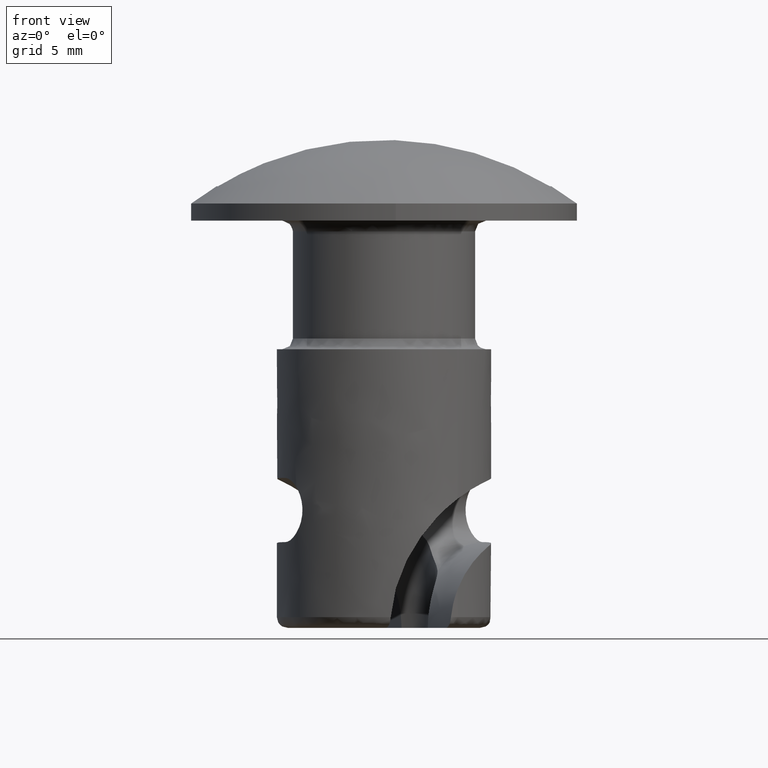
[diagram: clean part render]
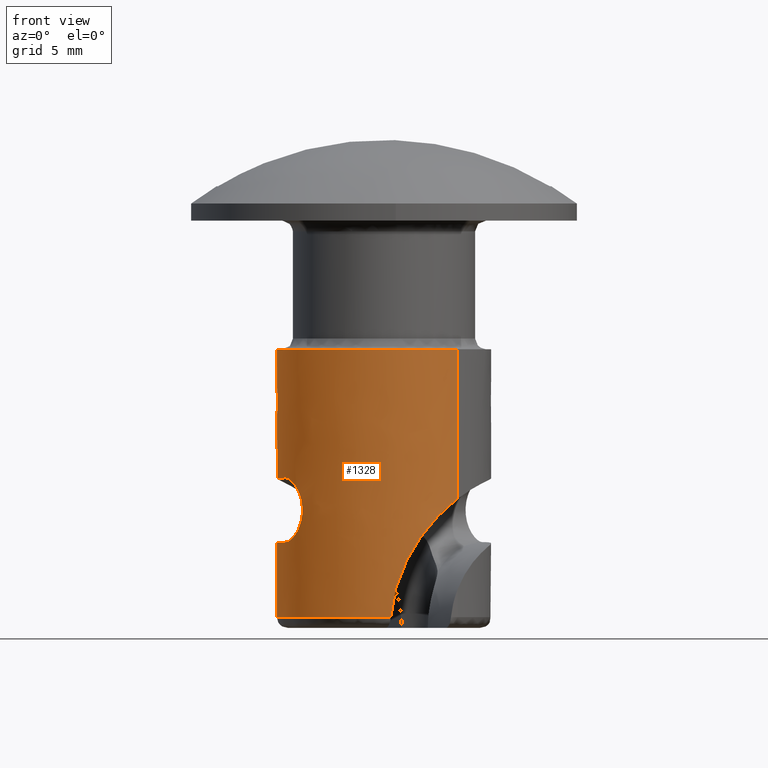
[diagram: same view with one face highlighted and labeled with its STEP entity id]
A machine part, front view. The second image highlights one B-rep face of the part: STEP entity #1328.
In plain terms, the highlighted face is a freeform B-spline surface patch.
Its self-contained STEP definition (entity closure, byte-faithful):
#1024=CARTESIAN_POINT('',(3.205212373083344,3.837527021850584,-18.812500000000000));
#1025=CARTESIAN_POINT('',(-0.212073591573738,6.691742039469135,-18.812500000000011));
#1026=CARTESIAN_POINT('',(-3.441772878468769,3.626871855061437,-18.812500000000000));
#1027=CARTESIAN_POINT('',(-7.068644733530205,0.185098976592668,-18.812500000000004));
#1028=CARTESIAN_POINT('',(-3.626871855061437,-3.441772878468769,-18.812500000000000));
#1029=CARTESIAN_POINT('',(-0.185098976592668,-7.068644733530205,-18.812500000000004));
#1030=CARTESIAN_POINT('',(3.441772878468769,-3.626871855061437,-18.812500000000000));
#1031=CARTESIAN_POINT('',(3.205212373083344,3.837527021850584,-5.679687500000000));
#1032=CARTESIAN_POINT('',(-0.212073591573738,6.691742039469135,-5.679687500000001));
#1033=CARTESIAN_POINT('',(-3.441772878468769,3.626871855061437,-5.679687500000000));
#1034=CARTESIAN_POINT('',(-7.068644733530205,0.185098976592668,-5.679687500000000));
#1035=CARTESIAN_POINT('',(-3.626871855061437,-3.441772878468769,-5.679687500000000));
#1036=CARTESIAN_POINT('',(-0.185098976592668,-7.068644733530205,-5.679687500000000));
#1037=CARTESIAN_POINT('',(3.441772878468769,-3.626871855061437,-5.679687500000000));
#1045=(BOUNDED_SURFACE()B_SPLINE_SURFACE(2,1,((#1024,#1031),(#1025,#1032),(#1026,#1033),(#1027,#1034),(#1028,#1035),(#1029,#1036),(#1030,#1037)),.UNSPECIFIED.,.F.,.F.,.U.)B_SPLINE_SURFACE_WITH_KNOTS((3,2,2,3),(2,2),(0.0,7.621529547664943,15.905800795126840,24.190072042588739),(0.0,13.132812500000011),.UNSPECIFIED.)GEOMETRIC_REPRESENTATION_ITEM()RATIONAL_B_SPLINE_SURFACE(((0.956886118190660,0.956886118190660),(0.730538238691624,0.730538238691624),(1.0,1.0),(0.707106781186548,0.707106781186548),(1.0,1.0),(0.707106781186548,0.707106781186548),(1.0,1.0)))REPRESENTATION_ITEM('')SURFACE());
#1046=CARTESIAN_POINT('',(3.205213124924041,3.837526393891474,-18.500000000000000));
#1047=VERTEX_POINT('',#1046);
#1048=CARTESIAN_POINT('',(-0.313195308170528,4.990181229067730,-18.500000000000000));
#1049=VERTEX_POINT('',#1048);
#1050=CARTESIAN_POINT('',(3.205213124924040,3.837526393891474,-18.500000000000004));
#1051=CARTESIAN_POINT('',(1.675712964474658,5.115009709393367,-18.500000000000000));
#1052=CARTESIAN_POINT('',(-0.313195308170527,4.990181229067735,-18.500000000000000));
#1060=(BOUNDED_CURVE()B_SPLINE_CURVE(2,(#1050,#1051,#1052),.UNSPECIFIED.,.F.,.U.)B_SPLINE_CURVE_WITH_KNOTS((3,3),(0.701706621458012,1.0),.UNSPECIFIED.)CURVE()GEOMETRIC_REPRESENTATION_ITEM()RATIONAL_B_SPLINE_CURVE((0.906937285704358,0.884655851128052,1.0))REPRESENTATION_ITEM(''));
#1061=EDGE_CURVE('',#1047,#1049,#1060,.T.);
#1062=ORIENTED_EDGE('',*,*,#1061,.T.);
#1063=CARTESIAN_POINT('',(-4.602524578819660,-1.953654908462775,-12.0));
#1064=VERTEX_POINT('',#1063);
#1065=CARTESIAN_POINT('',(-0.313195308170528,4.990181229067730,-18.500000000000000));
#1066=CARTESIAN_POINT('',(-0.333545851804895,4.988903981911282,-18.227404034916059));
#1067=CARTESIAN_POINT('',(-0.370451384091151,4.986533046700084,-17.959249060605970));
#1068=CARTESIAN_POINT('',(-0.474881855281474,4.977673480385340,-17.431225059849361));
#1069=CARTESIAN_POINT('',(-0.542409124009917,4.971179196966263,-17.171356847581681));
#1070=CARTESIAN_POINT('',(-0.706406020038393,4.950537425473404,-16.659581951972100));
#1071=CARTESIAN_POINT('',(-0.802873824092457,4.936397977225639,-16.407674507044259));
#1072=CARTESIAN_POINT('',(-0.940996612575546,4.910734653344343,-16.097729918009911));
#1073=CARTESIAN_POINT('',(-0.969551043867784,4.905187357017825,-16.035885008049739));
#1074=CARTESIAN_POINT('',(-1.028087493280969,4.893253349283264,-15.913361771660890));
#1075=CARTESIAN_POINT('',(-1.118051088080688,4.874092148370234,-15.731262537235420));
#1076=CARTESIAN_POINT('',(-1.214251395302763,4.850810000689118,-15.554138836756710));
#1077=CARTESIAN_POINT('',(-1.414408267091195,4.797760488926594,-15.206379579386390));
#1078=CARTESIAN_POINT('',(-1.558169819214901,4.753795887635031,-14.983168421206990));
#1079=CARTESIAN_POINT('',(-1.863907614147502,4.642447299941150,-14.553791083939510));
#1080=CARTESIAN_POINT('',(-2.025895583933864,4.575106692724223,-14.347622971084670));
#1081=CARTESIAN_POINT('',(-2.281063056653407,4.450361207056593,-14.051555063620009));
#1082=CARTESIAN_POINT('',(-2.367376569659461,4.405164397270802,-13.955982844506771));
#1083=CARTESIAN_POINT('',(-2.541146936122862,4.307263335180264,-13.771865472979149));
#1084=CARTESIAN_POINT('',(-2.628732671500905,4.254497812786169,-13.683171423565920));
#1085=CARTESIAN_POINT('',(-2.892723025411976,4.083638314925278,-13.427056668190859));
#1086=CARTESIAN_POINT('',(-3.070396017769359,3.953064536127255,-13.269582351309699));
#1087=CARTESIAN_POINT('',(-3.291380926773831,3.764331252449096,-13.089242760859021));
#1088=CARTESIAN_POINT('',(-3.335524028095409,3.725288414428775,-13.054003577542160));
#1089=CARTESIAN_POINT('',(-3.422664179133564,3.645389448269559,-12.985894069380750));
#1090=CARTESIAN_POINT('',(-3.552009706186949,3.522524370147845,-12.886989915287719));
#1091=CARTESIAN_POINT('',(-3.676897774425378,3.390498169590405,-12.797528488456930));
#1092=CARTESIAN_POINT('',(-3.919715576655280,3.113848121602381,-12.630378433644120));
#1093=CARTESIAN_POINT('',(-4.072369424853507,2.912669793240186,-12.534629349522540));
#1094=CARTESIAN_POINT('',(-4.247737079332166,2.638364945079645,-12.432128897164990));
#1095=CARTESIAN_POINT('',(-4.282124638523801,2.582196965308681,-12.412439115585441));
#1096=CARTESIAN_POINT('',(-4.348615455072798,2.468577770985542,-12.375064069439350));
#1097=CARTESIAN_POINT('',(-4.380752585837200,2.411089188979645,-12.357356393916991));
#1098=CARTESIAN_POINT('',(-4.473803432700945,2.236617988769802,-12.306958400578861));
#1099=CARTESIAN_POINT('',(-4.531360045320748,2.117632276851962,-12.276988912221560));
#1100=CARTESIAN_POINT('',(-4.637252253307963,1.874428408738168,-12.223280925048851));
#1101=CARTESIAN_POINT('',(-4.685588703104427,1.750210353618246,-12.199543618053600));
#1102=CARTESIAN_POINT('',(-4.772655318853499,1.496575752841046,-12.157395960413609));
#1103=CARTESIAN_POINT('',(-4.811415144130069,1.367047489399565,-12.138972828942750));
#1104=CARTESIAN_POINT('',(-4.912306264594552,0.971280223507315,-12.090556243802620));
#1105=CARTESIAN_POINT('',(-4.957497855358525,0.704510719052341,-12.068087001453550));
#1106=CARTESIAN_POINT('',(-4.992796520655979,0.300437993788355,-12.043235656493380));
#1107=CARTESIAN_POINT('',(-4.999123847875689,0.165089838578599,-12.036452067586101));
#1108=CARTESIAN_POINT('',(-5.000311054724803,-0.038895132051304,-12.027979446137730));
#1109=CARTESIAN_POINT('',(-4.999321247270415,-0.107050814775592,-12.025440123472841));
#1110=CARTESIAN_POINT('',(-4.994526163105690,-0.243682614082919,-12.020852335175160));
#1111=CARTESIAN_POINT('',(-4.990711570760094,-0.312171872780972,-12.018804783439700));
#1112=CARTESIAN_POINT('',(-4.964777035750552,-0.652258504024481,-12.009688347366311));
#1113=CARTESIAN_POINT('',(-4.922157790813722,-0.919353949308259,-12.005776204053770));
#1114=CARTESIAN_POINT('',(-4.794588090783870,-1.443874662666524,-12.000926861120540));
#1115=CARTESIAN_POINT('',(-4.709642351537382,-1.701301138292809,-11.999999999999970));
#1116=CARTESIAN_POINT('',(-4.602524578819679,-1.953654908462781,-12.0));
#1117=B_SPLINE_CURVE_WITH_KNOTS('',3,(#1065,#1066,#1067,#1068,#1069,#1070,#1071,#1072,#1073,#1074,#1075,#1076,#1077,#1078,#1079,#1080,#1081,#1082,#1083,#1084,#1085,#1086,#1087,#1088,#1089,#1090,#1091,#1092,#1093,#1094,#1095,#1096,#1097,#1098,#1099,#1100,#1101,#1102,#1103,#1104,#1105,#1106,#1107,#1108,#1109,#1110,#1111,#1112,#1113,#1114,#1115,#1116),.UNSPECIFIED.,.F.,.U.,(4,2,2,2,2,1,2,2,2,2,2,2,2,1,2,2,2,2,2,2,2,2,2,2,2,2,4),(0.0,0.062499999999999,0.124999999999999,0.187499999999998,0.203124999999998,0.218749999999998,0.249999999999998,0.312499999999998,0.374999999999997,0.406249999999997,0.437499999999997,0.499999999999997,0.515624999999997,0.531249999999997,0.562499999999997,0.624999999999998,0.640624999999998,0.656249999999999,0.687499999999999,0.718749999999999,0.749999999999999,0.812499999999999,0.843749999999999,0.859374999999999,0.874999999999999,0.937500000000000,1.0),.UNSPECIFIED.);
#1118=EDGE_CURVE('',#1049,#1064,#1117,.T.);
#1119=ORIENTED_EDGE('',*,*,#1118,.T.);
#1120=CARTESIAN_POINT('',(-4.602524578820329,-1.953654908461280,-15.0));
#1121=VERTEX_POINT('',#1120);
#1122=CARTESIAN_POINT('',(-4.602524578819660,-1.953654908462775,-12.0));
#1123=CARTESIAN_POINT('',(-4.583286532222242,-1.998976926148644,-11.999999999999600));
#1124=CARTESIAN_POINT('',(-4.563274655563524,-2.044255803955162,-12.002424994742920));
#1125=CARTESIAN_POINT('',(-4.521846569225862,-2.134329163576480,-12.012269923413941));
#1126=CARTESIAN_POINT('',(-4.500741525545569,-2.178452973019132,-12.019609078956680));
#1127=CARTESIAN_POINT('',(-4.436373648704045,-2.308227759730137,-12.048605119371841));
#1128=CARTESIAN_POINT('',(-4.392051281369685,-2.391298367197830,-12.077173352499090));
#1129=CARTESIAN_POINT('',(-4.324017515894582,-2.510971546438327,-12.134071833830941));
#1130=CARTESIAN_POINT('',(-4.301163931182855,-2.549880132075365,-12.155354799063311));
#1131=CARTESIAN_POINT('',(-4.256056699116483,-2.624477324109840,-12.201699691052310));
#1132=CARTESIAN_POINT('',(-4.211316017146745,-2.696268189654699,-12.252011352982890));
#1133=CARTESIAN_POINT('',(-4.167599939203552,-2.762714658213470,-12.310147404776210));
#1134=CARTESIAN_POINT('',(-4.124572976384840,-2.826549008673464,-12.372263431372611));
#1135=CARTESIAN_POINT('',(-4.103308352877657,-2.857291155668583,-12.405490144297771));
#1136=CARTESIAN_POINT('',(-4.042029548606867,-2.943977900124049,-12.509382067197370));
#1137=CARTESIAN_POINT('',(-4.004231603267068,-2.994873345709183,-12.584509900060111));
#1138=CARTESIAN_POINT('',(-3.953161702805849,-3.061584038341861,-12.706041815957470));
#1139=CARTESIAN_POINT('',(-3.937081752614206,-3.082202581260527,-12.748036722132991));
#1140=CARTESIAN_POINT('',(-3.907066437480246,-3.120163029684862,-12.835143000441660));
#1141=CARTESIAN_POINT('',(-3.893378860303747,-3.137193387719914,-12.879543103212081));
#1142=CARTESIAN_POINT('',(-3.856445384471974,-3.182664638921195,-13.015087199158859));
#1143=CARTESIAN_POINT('',(-3.837278353019772,-3.205574289447403,-13.108616680799150));
#1144=CARTESIAN_POINT('',(-3.817671569486337,-3.228852227722077,-13.253865452340490));
#1145=CARTESIAN_POINT('',(-3.812666791157220,-3.234748503088450,-13.303343915332009));
#1146=CARTESIAN_POINT('',(-3.806069059638136,-3.242508943995580,-13.401763191035750));
#1147=CARTESIAN_POINT('',(-3.802793230106266,-3.246344163889905,-13.500090310324961));
#1148=CARTESIAN_POINT('',(-3.806073135086069,-3.242504120765044,-13.598236533326849));
#1149=CARTESIAN_POINT('',(-3.812638279520693,-3.234782068754503,-13.696291615516630));
#1150=CARTESIAN_POINT('',(-3.817591363740609,-3.228947185350147,-13.745472610150189));
#1151=CARTESIAN_POINT('',(-3.837276998201714,-3.205576426202000,-13.891507983886770));
#1152=CARTESIAN_POINT('',(-3.856527665853866,-3.182565477519677,-13.985283578226699));
#1153=CARTESIAN_POINT('',(-3.893501301924083,-3.137041564271111,-14.120871618474281));
#1154=CARTESIAN_POINT('',(-3.907182975817483,-3.120016872454014,-14.165215513023220));
#1155=CARTESIAN_POINT('',(-3.937161496732803,-3.082100491476617,-14.252174254623640));
#1156=CARTESIAN_POINT('',(-3.953323122541688,-3.061376093025573,-14.294370421130560));
#1157=CARTESIAN_POINT('',(-4.004487075336396,-2.994533760061642,-14.416041364307640));
#1158=CARTESIAN_POINT('',(-4.042330353134812,-2.943565615185542,-14.491184628917161));
#1159=CARTESIAN_POINT('',(-4.103627075262500,-2.856833584734501,-14.595021533484580));
#1160=CARTESIAN_POINT('',(-4.124901405354690,-2.826069871977873,-14.628236157042540));
#1161=CARTESIAN_POINT('',(-4.167935147780713,-2.762209103071722,-14.690310673898530));
#1162=CARTESIAN_POINT('',(-4.189784654252073,-2.728989790958358,-14.719341698241450));
#1163=CARTESIAN_POINT('',(-4.256062892236824,-2.625385984949474,-14.800536159146690));
#1164=CARTESIAN_POINT('',(-4.301288601778196,-2.550958544738814,-14.846929859867100));
#1165=CARTESIAN_POINT('',(-4.392268042488657,-2.390910825542401,-14.922997411172091));
#1166=CARTESIAN_POINT('',(-4.436586017271869,-2.307808651805954,-14.951503057541650));
#1167=CARTESIAN_POINT('',(-4.500774740890321,-2.178381462752648,-14.980399608065420));
#1168=CARTESIAN_POINT('',(-4.521791275131985,-2.134439755168869,-14.987704217155621));
#1169=CARTESIAN_POINT('',(-4.562990200748773,-2.044883818747594,-14.997520022631180));
#1170=CARTESIAN_POINT('',(-4.583211102384047,-1.999154627789134,-14.999999999998980));
#1171=CARTESIAN_POINT('',(-4.602524578820329,-1.953654908461280,-15.0));
#1172=B_SPLINE_CURVE_WITH_KNOTS('',3,(#1122,#1123,#1124,#1125,#1126,#1127,#1128,#1129,#1130,#1131,#1132,#1133,#1134,#1135,#1136,#1137,#1138,#1139,#1140,#1141,#1142,#1143,#1144,#1145,#1146,#1147,#1148,#1149,#1150,#1151,#1152,#1153,#1154,#1155,#1156,#1157,#1158,#1159,#1160,#1161,#1162,#1163,#1164,#1165,#1166,#1167,#1168,#1169,#1170,#1171),.UNSPECIFIED.,.F.,.U.,(4,2,2,2,2,1,2,2,2,2,2,2,2,1,2,2,2,2,2,2,2,2,2,2,2,4),(0.0,0.031250000000000,0.062499999999999,0.124999999999999,0.156249999999999,0.187499999999999,0.218749999999999,0.249999999999999,0.312499999999998,0.343749999999997,0.374999999999997,0.437499999999996,0.468749999999996,0.499999999999995,0.531249999999995,0.562499999999995,0.624999999999995,0.656249999999995,0.687499999999996,0.749999999999997,0.781249999999997,0.812499999999998,0.874999999999998,0.937499999999999,0.968750000000000,1.0),.UNSPECIFIED.);
#1173=EDGE_CURVE('',#1064,#1121,#1172,.T.);
#1174=ORIENTED_EDGE('',*,*,#1173,.T.);
#1175=CARTESIAN_POINT('',(-3.124494516365075,3.903528406097000,-18.500000000000000));
#1176=VERTEX_POINT('',#1175);
#1177=CARTESIAN_POINT('',(-3.124494516365075,3.903528406097000,-18.500000000000000));
#1178=CARTESIAN_POINT('',(-3.141497206504564,3.889918972123852,-18.329085809428229));
#1179=CARTESIAN_POINT('',(-3.167168952576752,3.869232804745824,-18.161523228162320));
#1180=CARTESIAN_POINT('',(-3.234522902390568,3.813106773406463,-17.832917168264409));
#1181=CARTESIAN_POINT('',(-3.276211799409806,3.777668959982494,-17.671874808519082));
#1182=CARTESIAN_POINT('',(-3.350061010955971,3.711896800063880,-17.435346496150700));
#1183=CARTESIAN_POINT('',(-3.376628748647441,3.687799976673115,-17.357176245270630));
#1184=CARTESIAN_POINT('',(-3.433170327136708,3.635221022030245,-17.203323521975520));
#1185=CARTESIAN_POINT('',(-3.462929999925061,3.606938317087677,-17.128194424758050));
#1186=CARTESIAN_POINT('',(-3.556178790539176,3.515842038593940,-16.908095277418109));
#1187=CARTESIAN_POINT('',(-3.623638213816003,3.446810862760295,-16.768397395912210));
#1188=CARTESIAN_POINT('',(-3.730862855070703,3.329185653237317,-16.569323697495509));
#1189=CARTESIAN_POINT('',(-3.767610776932484,3.287623292947833,-16.504715556961461));
#1190=CARTESIAN_POINT('',(-3.823996741930348,3.221473015315171,-16.410452851249222));
#1191=CARTESIAN_POINT('',(-3.843002631034527,3.198787939437601,-16.379473757657909));
#1192=CARTESIAN_POINT('',(-3.881392731956740,3.152095170508524,-16.318405941831870));
#1193=CARTESIAN_POINT('',(-3.900819281501927,3.128032969908966,-16.288254606250710));
#1194=CARTESIAN_POINT('',(-3.998039103838050,3.005226209215016,-16.140862284514650));
#1195=CARTESIAN_POINT('',(-4.076340102817636,2.898732281949624,-16.033231626039559));
#1196=CARTESIAN_POINT('',(-4.230614691407395,2.668538328205926,-15.836740421009580));
#1197=CARTESIAN_POINT('',(-4.306598702808373,2.544837386058812,-15.747889131138500));
#1198=CARTESIAN_POINT('',(-4.416314565173592,2.345615716302213,-15.627637105199160));
#1199=CARTESIAN_POINT('',(-4.452262872957066,2.276721580310234,-15.589644062635980));
#1200=CARTESIAN_POINT('',(-4.521232362171112,2.136483974060858,-15.518897536067840));
#1201=CARTESIAN_POINT('',(-4.554385047638120,2.064922595269492,-15.485992889834710));
#1202=CARTESIAN_POINT('',(-4.649463263658966,1.846024188980839,-15.393977810021999));
#1203=CARTESIAN_POINT('',(-4.707009817866276,1.694479496519856,-15.341549436031720));
#1204=CARTESIAN_POINT('',(-4.783086171494692,1.459070671167149,-15.273843874661560));
#1205=CARTESIAN_POINT('',(-4.806756298661273,1.379181928370315,-15.253086766153380));
#1206=CARTESIAN_POINT('',(-4.850350629760796,1.217024106023430,-15.214934364085909));
#1207=CARTESIAN_POINT('',(-4.870108423593167,1.135388500586455,-15.197682453386649));
#1208=CARTESIAN_POINT('',(-4.923218031414553,0.888918800804062,-15.150619954407080));
#1209=CARTESIAN_POINT('',(-4.950415817333356,0.722527000254635,-15.125476623544710));
#1210=CARTESIAN_POINT('',(-4.978567056540602,0.470144202536802,-15.094570195949281));
#1211=CARTESIAN_POINT('',(-4.985840966187453,0.385549398354664,-15.085409897000940));
#1212=CARTESIAN_POINT('',(-4.996081838701169,0.215464010185016,-15.069022837299840));
#1213=CARTESIAN_POINT('',(-4.999049395421705,0.129792913045043,-15.061783214038700));
#1214=CARTESIAN_POINT('',(-5.001317324128483,-0.127237006973323,-15.042592190814441));
#1215=CARTESIAN_POINT('',(-4.994032914647901,-0.297581581727470,-15.033195913032360));
#1216=CARTESIAN_POINT('',(-4.962273247839043,-0.636210471582318,-15.018720468864769));
#1217=CARTESIAN_POINT('',(-4.937797715169578,-0.804495010058559,-15.013648068667820));
#1218=CARTESIAN_POINT('',(-4.888104775766373,-1.055318115743182,-15.008041504592530));
#1219=CARTESIAN_POINT('',(-4.869373207205516,-1.138658237221582,-15.006512037294300));
#1220=CARTESIAN_POINT('',(-4.827510985854215,-1.304789520842492,-15.003989803384840));
#1221=CARTESIAN_POINT('',(-4.804333977703627,-1.387715428520705,-15.002996223109520));
#1222=CARTESIAN_POINT('',(-4.728577989275443,-1.634033818140770,-15.000683434077031));
#1223=CARTESIAN_POINT('',(-4.669735641671321,-1.795315496828064,-14.999999999999980));
#1224=CARTESIAN_POINT('',(-4.602524578820329,-1.953654908461280,-15.0));
#1225=B_SPLINE_CURVE_WITH_KNOTS('',3,(#1177,#1178,#1179,#1180,#1181,#1182,#1183,#1184,#1185,#1186,#1187,#1188,#1189,#1190,#1191,#1192,#1193,#1194,#1195,#1196,#1197,#1198,#1199,#1200,#1201,#1202,#1203,#1204,#1205,#1206,#1207,#1208,#1209,#1210,#1211,#1212,#1213,#1214,#1215,#1216,#1217,#1218,#1219,#1220,#1221,#1222,#1223,#1224),.UNSPECIFIED.,.F.,.U.,(4,2,2,2,2,2,2,2,2,2,2,2,2,2,2,2,2,2,2,2,2,2,2,4),(0.0,0.062499999999998,0.124999999999996,0.156249999999995,0.187499999999994,0.249999999999992,0.281249999999990,0.296874999999990,0.312499999999990,0.374999999999990,0.437499999999990,0.468749999999990,0.499999999999991,0.562499999999991,0.593749999999992,0.624999999999993,0.687499999999994,0.718749999999995,0.749999999999995,0.812499999999996,0.874999999999997,0.906249999999998,0.937499999999999,1.0),.UNSPECIFIED.);
#1226=EDGE_CURVE('',#1176,#1121,#1225,.T.);
#1227=ORIENTED_EDGE('',*,*,#1226,.F.);
#1228=CARTESIAN_POINT('',(0.313195308170549,-4.990181229067730,-18.500000000000000));
#1229=VERTEX_POINT('',#1228);
#1230=CARTESIAN_POINT('',(-3.124494516365075,3.903528406097000,-18.500000000000000));
#1231=CARTESIAN_POINT('',(-5.984494709150617,1.614303379527478,-18.500000000000007));
#1232=CARTESIAN_POINT('',(-4.663729042102854,-1.802673409646462,-18.500000000000000));
#1233=CARTESIAN_POINT('',(-3.342963375055088,-5.219650198820404,-18.500000000000007));
#1234=CARTESIAN_POINT('',(0.313195308170550,-4.990181229067733,-18.500000000000000));
#1242=(BOUNDED_CURVE()B_SPLINE_CURVE(2,(#1230,#1231,#1232,#1233,#1234),.UNSPECIFIED.,.F.,.U.)B_SPLINE_CURVE_WITH_KNOTS((3,2,3),(0.0,0.500000000000000,1.0),.UNSPECIFIED.)CURVE()GEOMETRIC_REPRESENTATION_ITEM()RATIONAL_B_SPLINE_CURVE((1.0,0.806659890615518,1.0,0.806659890615518,1.0))REPRESENTATION_ITEM(''));
#1243=EDGE_CURVE('',#1176,#1229,#1242,.T.);
#1244=ORIENTED_EDGE('',*,*,#1243,.T.);
#1245=CARTESIAN_POINT('',(3.441772489773512,-3.626879071670037,-12.971468445251970));
#1246=VERTEX_POINT('',#1245);
#1247=CARTESIAN_POINT('',(0.313195308170549,-4.990181229067730,-18.500000000000000));
#1248=CARTESIAN_POINT('',(0.333307604284354,-4.988918687996154,-18.230595584293130));
#1249=CARTESIAN_POINT('',(0.369687605928218,-4.986585242044535,-17.964315953219700));
#1250=CARTESIAN_POINT('',(0.473361101141444,-4.977813318738098,-17.437737116301982));
#1251=CARTESIAN_POINT('',(0.540653150546677,-4.971373877413541,-17.177437654748989));
#1252=CARTESIAN_POINT('',(0.664073570500439,-4.955876187427469,-16.791396268637179));
#1253=CARTESIAN_POINT('',(0.708966236983857,-4.949724090122489,-16.663451752685699));
#1254=CARTESIAN_POINT('',(0.806211868832890,-4.934817265211896,-16.409038986561210));
#1255=CARTESIAN_POINT('',(0.858259308607575,-4.926103911221521,-16.283403935838869));
#1256=CARTESIAN_POINT('',(1.023296839140192,-4.895442871057274,-15.913031641745521));
#1257=CARTESIAN_POINT('',(1.145479367632243,-4.868962660504051,-15.673952758655100));
#1258=CARTESIAN_POINT('',(1.411636456027897,-4.798562067142946,-15.210881584733420));
#1259=CARTESIAN_POINT('',(1.555618842037072,-4.754668175550679,-14.986889557972640));
#1260=CARTESIAN_POINT('',(1.748117444672715,-4.684626467321307,-14.716378530285510));
#1261=CARTESIAN_POINT('',(1.787244708693765,-4.669854392232244,-14.662751920975960));
#1262=CARTESIAN_POINT('',(1.866732186261860,-4.638652129282026,-14.556457914002671));
#1263=CARTESIAN_POINT('',(1.907150836206471,-4.622195519707239,-14.503719544755761));
#1264=CARTESIAN_POINT('',(2.029366417212061,-4.570498432332858,-14.348033538662101));
#1265=CARTESIAN_POINT('',(2.112333838904430,-4.532856620605538,-14.247316360247810));
#1266=CARTESIAN_POINT('',(2.364956512230689,-4.409317582690288,-13.954258404212471));
#1267=CARTESIAN_POINT('',(2.538343054205639,-4.312872015794583,-13.770986782723710));
#1268=CARTESIAN_POINT('',(2.802864544916159,-4.141850554717852,-13.514184305258780));
#1269=CARTESIAN_POINT('',(2.891777321998069,-4.080437198372536,-13.431607154829830));
#1270=CARTESIAN_POINT('',(3.025835529198338,-3.980875283878258,-13.312326799035050));
#1271=CARTESIAN_POINT('',(3.070538287590806,-3.946511867155787,-13.273422507741040));
#1272=CARTESIAN_POINT('',(3.159190462879614,-3.875909798573725,-13.197895032347070));
#1273=CARTESIAN_POINT('',(3.203240991954580,-3.839596924435850,-13.161181307753759));
#1274=CARTESIAN_POINT('',(3.312670821425839,-3.746148130833290,-13.071872753584049));
#1275=CARTESIAN_POINT('',(3.377654682156511,-3.687720542681400,-13.020559248898749));
#1276=CARTESIAN_POINT('',(3.441772489773512,-3.626879071670037,-12.971468445251970));
#1277=B_SPLINE_CURVE_WITH_KNOTS('',3,(#1247,#1248,#1249,#1250,#1251,#1252,#1253,#1254,#1255,#1256,#1257,#1258,#1259,#1260,#1261,#1262,#1263,#1264,#1265,#1266,#1267,#1268,#1269,#1270,#1271,#1272,#1273,#1274,#1275,#1276),.UNSPECIFIED.,.F.,.U.,(4,2,2,2,2,2,2,2,2,2,2,2,2,2,4),(0.0,0.062500000000000,0.125000000000000,0.156250000000000,0.187500000000000,0.250000000000000,0.312500000000000,0.328125000000000,0.343750000000000,0.375000000000000,0.437500000000000,0.468750000000000,0.484375000000000,0.500000000000001,0.523472666349916),.UNSPECIFIED.);
#1278=EDGE_CURVE('',#1229,#1246,#1277,.T.);
#1279=ORIENTED_EDGE('',*,*,#1278,.T.);
#1280=CARTESIAN_POINT('',(3.441772743131209,-3.626871983491977,-6.0));
#1281=VERTEX_POINT('',#1280);
#1282=CARTESIAN_POINT('',(3.441772489773512,-3.626879071670037,-12.971468445251970));
#1283=CARTESIAN_POINT('',(3.441772743131209,-3.626871983491977,-6.0));
#1284=QUASI_UNIFORM_CURVE('',1,(#1282,#1283),.UNSPECIFIED.,.F.,.U.);
#1285=EDGE_CURVE('',#1246,#1281,#1284,.T.);
#1286=ORIENTED_EDGE('',*,*,#1285,.T.);
#1287=CARTESIAN_POINT('',(-5.0,0.0,-6.0));
#1288=VERTEX_POINT('',#1287);
#1289=CARTESIAN_POINT('',(-5.0,0.0,-6.0));
#1290=CARTESIAN_POINT('',(-5.000000000000001,-5.000000000000001,-6.0));
#1291=CARTESIAN_POINT('',(0.0,-5.0,-6.0));
#1292=CARTESIAN_POINT('',(1.994797513595347,-5.0,-6.0));
#1293=CARTESIAN_POINT('',(3.441772743131209,-3.626871983491978,-6.0));
#1301=(BOUNDED_CURVE()B_SPLINE_CURVE(2,(#1289,#1290,#1291,#1292,#1293),.UNSPECIFIED.,.F.,.U.)B_SPLINE_CURVE_WITH_KNOTS((3,2,3),(0.500000000000000,0.750000000000000,0.871049515396278),.UNSPECIFIED.)CURVE()GEOMETRIC_REPRESENTATION_ITEM()RATIONAL_B_SPLINE_CURVE((1.0,0.707106781186548,1.0,0.858181671199102,0.853699662203474))REPRESENTATION_ITEM(''));
#1302=EDGE_CURVE('',#1288,#1281,#1301,.T.);
#1303=ORIENTED_EDGE('',*,*,#1302,.F.);
#1304=CARTESIAN_POINT('',(3.205211463064755,3.837527781923784,-6.0));
#1305=VERTEX_POINT('',#1304);
#1306=CARTESIAN_POINT('',(3.205211463064754,3.837527781923785,-6.0));
#1307=CARTESIAN_POINT('',(1.813409554208544,5.0,-6.0));
#1308=CARTESIAN_POINT('',(0.0,5.0,-6.0));
#1309=CARTESIAN_POINT('',(-5.000000000000001,5.000000000000001,-6.0));
#1310=CARTESIAN_POINT('',(-5.0,0.0,-6.0));
#1318=(BOUNDED_CURVE()B_SPLINE_CURVE(2,(#1306,#1307,#1308,#1309,#1310),.UNSPECIFIED.,.F.,.U.)B_SPLINE_CURVE_WITH_KNOTS((3,2,3),(0.138519975745648,0.250000000000000,0.500000000000000),.UNSPECIFIED.)CURVE()GEOMETRIC_REPRESENTATION_ITEM()RATIONAL_B_SPLINE_CURVE((0.855266602642360,0.869393027450964,1.0,0.707106781186548,1.0))REPRESENTATION_ITEM(''));
#1319=EDGE_CURVE('',#1305,#1288,#1318,.T.);
#1320=ORIENTED_EDGE('',*,*,#1319,.F.);
#1321=CARTESIAN_POINT('',(3.205213124924041,3.837526393891474,-18.500000000000000));
#1322=CARTESIAN_POINT('',(3.205211463064755,3.837527781923784,-6.0));
#1323=QUASI_UNIFORM_CURVE('',1,(#1321,#1322),.UNSPECIFIED.,.F.,.U.);
#1324=EDGE_CURVE('',#1047,#1305,#1323,.T.);
#1325=ORIENTED_EDGE('',*,*,#1324,.F.);
#1326=EDGE_LOOP('',(#1062,#1119,#1174,#1227,#1244,#1279,#1286,#1303,#1320,#1325));
#1327=FACE_OUTER_BOUND('',#1326,.T.);
#1328=ADVANCED_FACE('',(#1327),#1045,.T.);